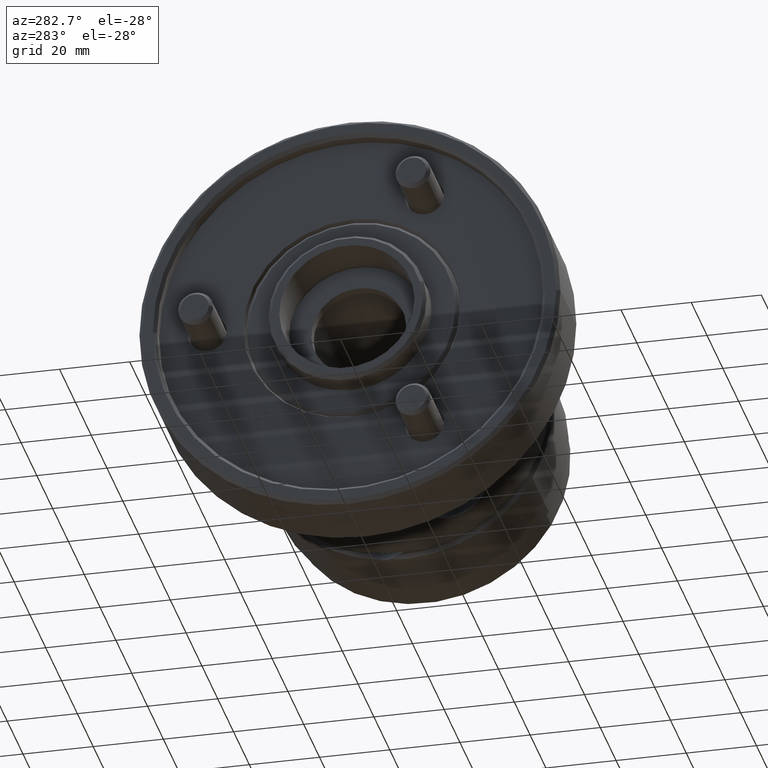
[diagram: clean part render]
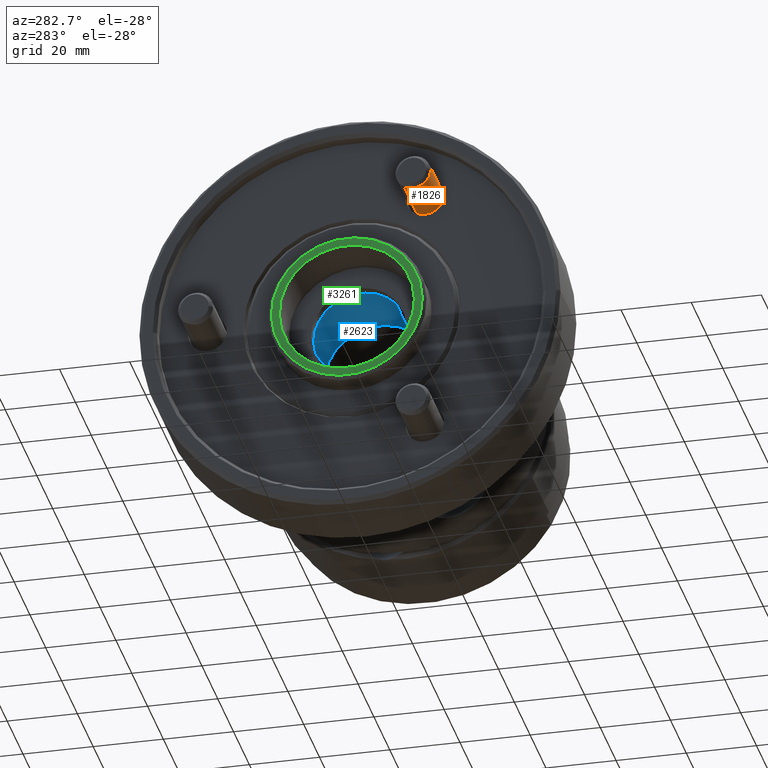
[diagram: same view with three faces highlighted in distinct colors, each labeled with its STEP entity id]
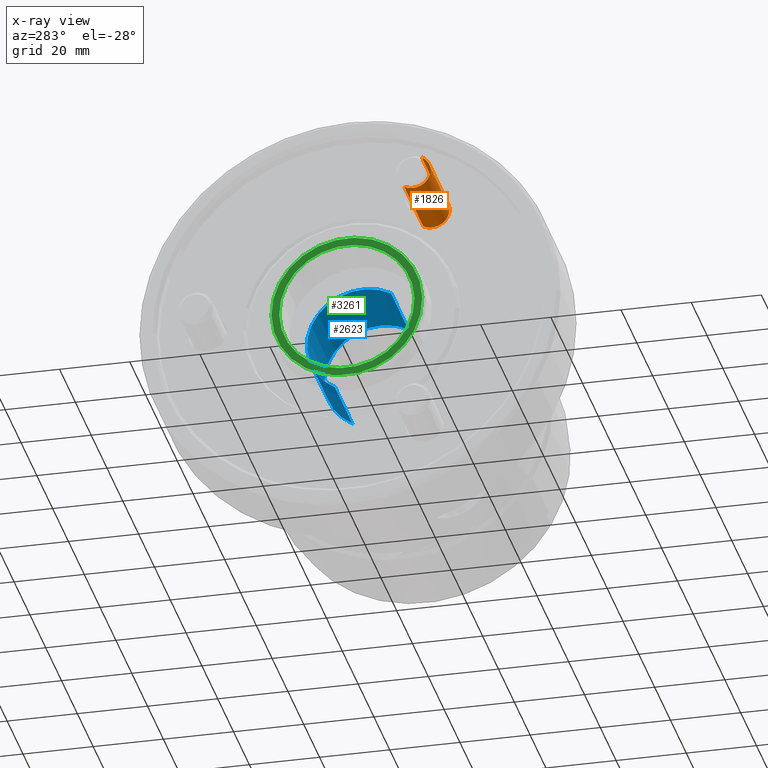
[diagram: x-ray of the same camera — body ghosted, the three highlighted faces saturated]
A machine part, auxiliary view with three faces highlighted in distinct colors.
The next image is the same camera in x-ray (body ghosted, the three faces saturated) — at least one of them is partly hidden behind the body in this view.
Their STEP definitions:

[orange] entity #1826 — the highlighted cylindrical surface (edge-blend (fillet) strip) has radius 5 mm, axis along (1, -0, 0).
#90 = DIRECTION ( 'NONE',  ( 0.0000000000000000000, 0.0000000000000000000, 1.000000000000000000 ) ) ;
#95 = CARTESIAN_POINT ( 'NONE',  ( 0.0000000000000000000, 0.0000000000000000000, 5.000000000000000000 ) ) ;
#348 = EDGE_CURVE ( 'NONE', #2167, #7742, #2734, .T. ) ;
#508 = DIRECTION ( 'NONE',  ( -1.000000000000000000, -0.0000000000000000000, -0.0000000000000000000 ) ) ;
#1025 = AXIS2_PLACEMENT_3D ( 'NONE', #4782, #508, #5508 ) ;
#1409 = DIRECTION ( 'NONE',  ( -1.000000000000000000, -0.0000000000000000000, -0.0000000000000000000 ) ) ;
#1592 = CIRCLE ( 'NONE', #7359, 5.000000000000000000 ) ;
#1620 = ORIENTED_EDGE ( 'NONE', *, *, #6912, .F. ) ;
#1826 = ADVANCED_FACE ( 'NONE', ( #3381 ), #5298, .T. ) ;
#2101 = EDGE_LOOP ( 'NONE', ( #7240, #7656, #4763, #1620 ) ) ;
#2167 = VERTEX_POINT ( 'NONE', #5706 ) ;
#2221 = DIRECTION ( 'NONE',  ( -1.000000000000000000, -0.0000000000000000000, -0.0000000000000000000 ) ) ;
#2318 = VERTEX_POINT ( 'NONE', #6435 ) ;
#2715 = EDGE_CURVE ( 'NONE', #2318, #2167, #1592, .T. ) ;
#2734 = LINE ( 'NONE', #95, #6554 ) ;
#3381 = FACE_OUTER_BOUND ( 'NONE', #2101, .T. ) ;
#3520 = CARTESIAN_POINT ( 'NONE',  ( 0.0000000000000000000, 6.123233995736766300E-016, -5.000000000000000000 ) ) ;
#3783 = DIRECTION ( 'NONE',  ( -1.000000000000000000, -0.0000000000000000000, -0.0000000000000000000 ) ) ;
#3798 = CARTESIAN_POINT ( 'NONE',  ( 10.00000000000000200, 0.0000000000000000000, 5.000000000000000000 ) ) ;
#4284 = VECTOR ( 'NONE', #1409, 1000.000000000000000 ) ;
#4368 = DIRECTION ( 'NONE',  ( -1.000000000000000000, -0.0000000000000000000, -0.0000000000000000000 ) ) ;
#4422 = AXIS2_PLACEMENT_3D ( 'NONE', #4519, #3783, #6627 ) ;
#4519 = CARTESIAN_POINT ( 'NONE',  ( 0.0000000000000000000, 0.0000000000000000000, 0.0000000000000000000 ) ) ;
#4763 = ORIENTED_EDGE ( 'NONE', *, *, #348, .T. ) ;
#4782 = CARTESIAN_POINT ( 'NONE',  ( 10.00000000000000200, 0.0000000000000000000, 0.0000000000000000000 ) ) ;
#5031 = EDGE_CURVE ( 'NONE', #2318, #5427, #6655, .T. ) ;
#5298 = CYLINDRICAL_SURFACE ( 'NONE', #4422, 5.000000000000000000 ) ;
#5427 = VERTEX_POINT ( 'NONE', #7486 ) ;
#5508 = DIRECTION ( 'NONE',  ( 0.0000000000000000000, 0.0000000000000000000, 1.000000000000000000 ) ) ;
#5706 = CARTESIAN_POINT ( 'NONE',  ( 33.99999999999998600, 0.0000000000000000000, 5.000000000000000000 ) ) ;
#6435 = CARTESIAN_POINT ( 'NONE',  ( 33.99999999999998600, 6.123233995736766300E-016, -5.000000000000000000 ) ) ;
#6554 = VECTOR ( 'NONE', #2221, 1000.000000000000000 ) ;
#6627 = DIRECTION ( 'NONE',  ( 0.0000000000000000000, 0.0000000000000000000, 1.000000000000000000 ) ) ;
#6655 = LINE ( 'NONE', #3520, #4284 ) ;
#6912 = EDGE_CURVE ( 'NONE', #5427, #7742, #9124, .T. ) ;
#7240 = ORIENTED_EDGE ( 'NONE', *, *, #5031, .F. ) ;
#7359 = AXIS2_PLACEMENT_3D ( 'NONE', #8643, #4368, #90 ) ;
#7486 = CARTESIAN_POINT ( 'NONE',  ( 10.00000000000000200, 6.123233995736766300E-016, -5.000000000000000000 ) ) ;
#7656 = ORIENTED_EDGE ( 'NONE', *, *, #2715, .T. ) ;
#7742 = VERTEX_POINT ( 'NONE', #3798 ) ;
#8643 = CARTESIAN_POINT ( 'NONE',  ( 33.99999999999998600, 0.0000000000000000000, 0.0000000000000000000 ) ) ;
#9124 = CIRCLE ( 'NONE', #1025, 5.000000000000000000 ) ;

[blue] entity #2623 — the highlighted cylindrical surface (partial cylindrical patch) has radius 16 mm, axis along (-1, 0, -0).
#241 = EDGE_CURVE ( 'NONE', #3412, #6688, #5188, .T. ) ;
#461 = VERTEX_POINT ( 'NONE', #1258 ) ;
#814 = FACE_OUTER_BOUND ( 'NONE', #2841, .T. ) ;
#1258 = CARTESIAN_POINT ( 'NONE',  ( 4.500000000000002700, 0.0000000000000000000, 16.00000000000000000 ) ) ;
#1439 = CIRCLE ( 'NONE', #1871, 16.00000000000000000 ) ;
#1554 = ORIENTED_EDGE ( 'NONE', *, *, #241, .F. ) ;
#1871 = AXIS2_PLACEMENT_3D ( 'NONE', #6464, #2163, #7155 ) ;
#2163 = DIRECTION ( 'NONE',  ( -1.000000000000000000, -0.0000000000000000000, -0.0000000000000000000 ) ) ;
#2236 = CARTESIAN_POINT ( 'NONE',  ( 0.0000000000000000000, 0.0000000000000000000, 16.00000000000000000 ) ) ;
#2623 = ADVANCED_FACE ( 'NONE', ( #814 ), #7729, .F. ) ;
#2773 = CARTESIAN_POINT ( 'NONE',  ( 26.49999999999999600, 1.959434878635765100E-015, -16.00000000000000000 ) ) ;
#2812 = EDGE_CURVE ( 'NONE', #6688, #461, #4015, .T. ) ;
#2841 = EDGE_LOOP ( 'NONE', ( #1554, #5009, #3847, #4455 ) ) ;
#2874 = AXIS2_PLACEMENT_3D ( 'NONE', #3858, #8850, #4583 ) ;
#3412 = VERTEX_POINT ( 'NONE', #2773 ) ;
#3571 = VECTOR ( 'NONE', #3630, 1000.000000000000000 ) ;
#3630 = DIRECTION ( 'NONE',  ( -1.000000000000000000, -0.0000000000000000000, -0.0000000000000000000 ) ) ;
#3847 = ORIENTED_EDGE ( 'NONE', *, *, #3870, .T. ) ;
#3858 = CARTESIAN_POINT ( 'NONE',  ( 4.500000000000002700, 0.0000000000000000000, 0.0000000000000000000 ) ) ;
#3870 = EDGE_CURVE ( 'NONE', #5140, #461, #7150, .T. ) ;
#4015 = CIRCLE ( 'NONE', #2874, 16.00000000000000000 ) ;
#4455 = ORIENTED_EDGE ( 'NONE', *, *, #2812, .F. ) ;
#4493 = AXIS2_PLACEMENT_3D ( 'NONE', #8487, #5665, #6386 ) ;
#4583 = DIRECTION ( 'NONE',  ( 0.0000000000000000000, 0.0000000000000000000, 1.000000000000000000 ) ) ;
#4595 = CARTESIAN_POINT ( 'NONE',  ( 4.500000000000002700, 1.959434878635765100E-015, -16.00000000000000000 ) ) ;
#4679 = DIRECTION ( 'NONE',  ( -1.000000000000000000, -0.0000000000000000000, -0.0000000000000000000 ) ) ;
#5009 = ORIENTED_EDGE ( 'NONE', *, *, #6052, .F. ) ;
#5140 = VERTEX_POINT ( 'NONE', #7928 ) ;
#5188 = LINE ( 'NONE', #5346, #8752 ) ;
#5346 = CARTESIAN_POINT ( 'NONE',  ( 0.0000000000000000000, 1.959434878635765100E-015, -16.00000000000000000 ) ) ;
#5665 = DIRECTION ( 'NONE',  ( -1.000000000000000000, -0.0000000000000000000, -0.0000000000000000000 ) ) ;
#6052 = EDGE_CURVE ( 'NONE', #5140, #3412, #1439, .T. ) ;
#6386 = DIRECTION ( 'NONE',  ( 0.0000000000000000000, 0.0000000000000000000, 1.000000000000000000 ) ) ;
#6464 = CARTESIAN_POINT ( 'NONE',  ( 26.49999999999999600, 0.0000000000000000000, 0.0000000000000000000 ) ) ;
#6688 = VERTEX_POINT ( 'NONE', #4595 ) ;
#7150 = LINE ( 'NONE', #2236, #3571 ) ;
#7155 = DIRECTION ( 'NONE',  ( 0.0000000000000000000, 0.0000000000000000000, 1.000000000000000000 ) ) ;
#7729 = CYLINDRICAL_SURFACE ( 'NONE', #4493, 16.00000000000000000 ) ;
#7928 = CARTESIAN_POINT ( 'NONE',  ( 26.49999999999999600, 0.0000000000000000000, 16.00000000000000000 ) ) ;
#8487 = CARTESIAN_POINT ( 'NONE',  ( 0.0000000000000000000, 0.0000000000000000000, 0.0000000000000000000 ) ) ;
#8752 = VECTOR ( 'NONE', #4679, 1000.000000000000000 ) ;
#8850 = DIRECTION ( 'NONE',  ( 1.000000000000000000, 0.0000000000000000000, 0.0000000000000000000 ) ) ;

[green] entity #3261 — the highlighted planar face has unit normal (1, -0, 0).
#80 = CARTESIAN_POINT ( 'NONE',  ( 0.0000000000000000000, 2.357445088358654800E-015, -19.25000000000000000 ) ) ;
#169 = VERTEX_POINT ( 'NONE', #3140 ) ;
#176 = ORIENTED_EDGE ( 'NONE', *, *, #7492, .T. ) ;
#225 = AXIS2_PLACEMENT_3D ( 'NONE', #8804, #4531, #249 ) ;
#249 = DIRECTION ( 'NONE',  ( 0.0000000000000000000, 0.0000000000000000000, 1.000000000000000000 ) ) ;
#363 = AXIS2_PLACEMENT_3D ( 'NONE', #8522, #4245, #9239 ) ;
#616 = CARTESIAN_POINT ( 'NONE',  ( 0.0000000000000000000, 2.694222958124177600E-015, 21.50000000000000700 ) ) ;
#1117 = DIRECTION ( 'NONE',  ( 0.0000000000000000000, 0.0000000000000000000, -1.000000000000000000 ) ) ;
#1566 = CIRCLE ( 'NONE', #225, 19.25000000000000000 ) ;
#2111 = EDGE_CURVE ( 'NONE', #3164, #169, #8747, .T. ) ;
#2420 = EDGE_LOOP ( 'NONE', ( #176, #7861 ) ) ;
#2792 = DIRECTION ( 'NONE',  ( -1.000000000000000000, -0.0000000000000000000, -0.0000000000000000000 ) ) ;
#3140 = CARTESIAN_POINT ( 'NONE',  ( 0.0000000000000000000, 0.0000000000000000000, -21.50000000000000700 ) ) ;
#3164 = VERTEX_POINT ( 'NONE', #616 ) ;
#3261 = ADVANCED_FACE ( 'NONE', ( #7047, #8926 ), #6808, .F. ) ;
#3531 = AXIS2_PLACEMENT_3D ( 'NONE', #7065, #2792, #7781 ) ;
#3743 = CARTESIAN_POINT ( 'NONE',  ( 0.0000000000000000000, 0.0000000000000000000, 19.25000000000000000 ) ) ;
#3833 = VERTEX_POINT ( 'NONE', #80 ) ;
#3938 = CARTESIAN_POINT ( 'NONE',  ( 0.0000000000000000000, 19.25000000000000000, 0.0000000000000000000 ) ) ;
#4245 = DIRECTION ( 'NONE',  ( -1.000000000000000000, -0.0000000000000000000, -0.0000000000000000000 ) ) ;
#4247 = CARTESIAN_POINT ( 'NONE',  ( 0.0000000000000000000, 0.0000000000000000000, 0.0000000000000000000 ) ) ;
#4531 = DIRECTION ( 'NONE',  ( -1.000000000000000000, -0.0000000000000000000, -0.0000000000000000000 ) ) ;
#4644 = AXIS2_PLACEMENT_3D ( 'NONE', #3938, #5397, #1117 ) ;
#4751 = EDGE_CURVE ( 'NONE', #7682, #3833, #1566, .T. ) ;
#4969 = DIRECTION ( 'NONE',  ( 0.0000000000000000000, 0.0000000000000000000, -1.000000000000000000 ) ) ;
#5397 = DIRECTION ( 'NONE',  ( 1.000000000000000000, 0.0000000000000000000, 0.0000000000000000000 ) ) ;
#5683 = CIRCLE ( 'NONE', #363, 19.25000000000000000 ) ;
#5820 = AXIS2_PLACEMENT_3D ( 'NONE', #4247, #9241, #4969 ) ;
#6456 = EDGE_LOOP ( 'NONE', ( #9199, #8352 ) ) ;
#6808 = PLANE ( 'NONE',  #4644 ) ;
#7036 = EDGE_CURVE ( 'NONE', #3833, #7682, #5683, .T. ) ;
#7047 = FACE_OUTER_BOUND ( 'NONE', #2420, .T. ) ;
#7065 = CARTESIAN_POINT ( 'NONE',  ( 0.0000000000000000000, 0.0000000000000000000, 0.0000000000000000000 ) ) ;
#7224 = CIRCLE ( 'NONE', #3531, 21.50000000000000700 ) ;
#7492 = EDGE_CURVE ( 'NONE', #169, #3164, #7224, .T. ) ;
#7682 = VERTEX_POINT ( 'NONE', #3743 ) ;
#7781 = DIRECTION ( 'NONE',  ( 0.0000000000000000000, 0.0000000000000000000, -1.000000000000000000 ) ) ;
#7861 = ORIENTED_EDGE ( 'NONE', *, *, #2111, .T. ) ;
#8352 = ORIENTED_EDGE ( 'NONE', *, *, #7036, .F. ) ;
#8522 = CARTESIAN_POINT ( 'NONE',  ( 0.0000000000000000000, 0.0000000000000000000, 0.0000000000000000000 ) ) ;
#8747 = CIRCLE ( 'NONE', #5820, 21.50000000000000700 ) ;
#8804 = CARTESIAN_POINT ( 'NONE',  ( 0.0000000000000000000, 0.0000000000000000000, 0.0000000000000000000 ) ) ;
#8926 = FACE_BOUND ( 'NONE', #6456, .T. ) ;
#9199 = ORIENTED_EDGE ( 'NONE', *, *, #4751, .F. ) ;
#9239 = DIRECTION ( 'NONE',  ( 0.0000000000000000000, 0.0000000000000000000, 1.000000000000000000 ) ) ;
#9241 = DIRECTION ( 'NONE',  ( -1.000000000000000000, -0.0000000000000000000, -0.0000000000000000000 ) ) ;